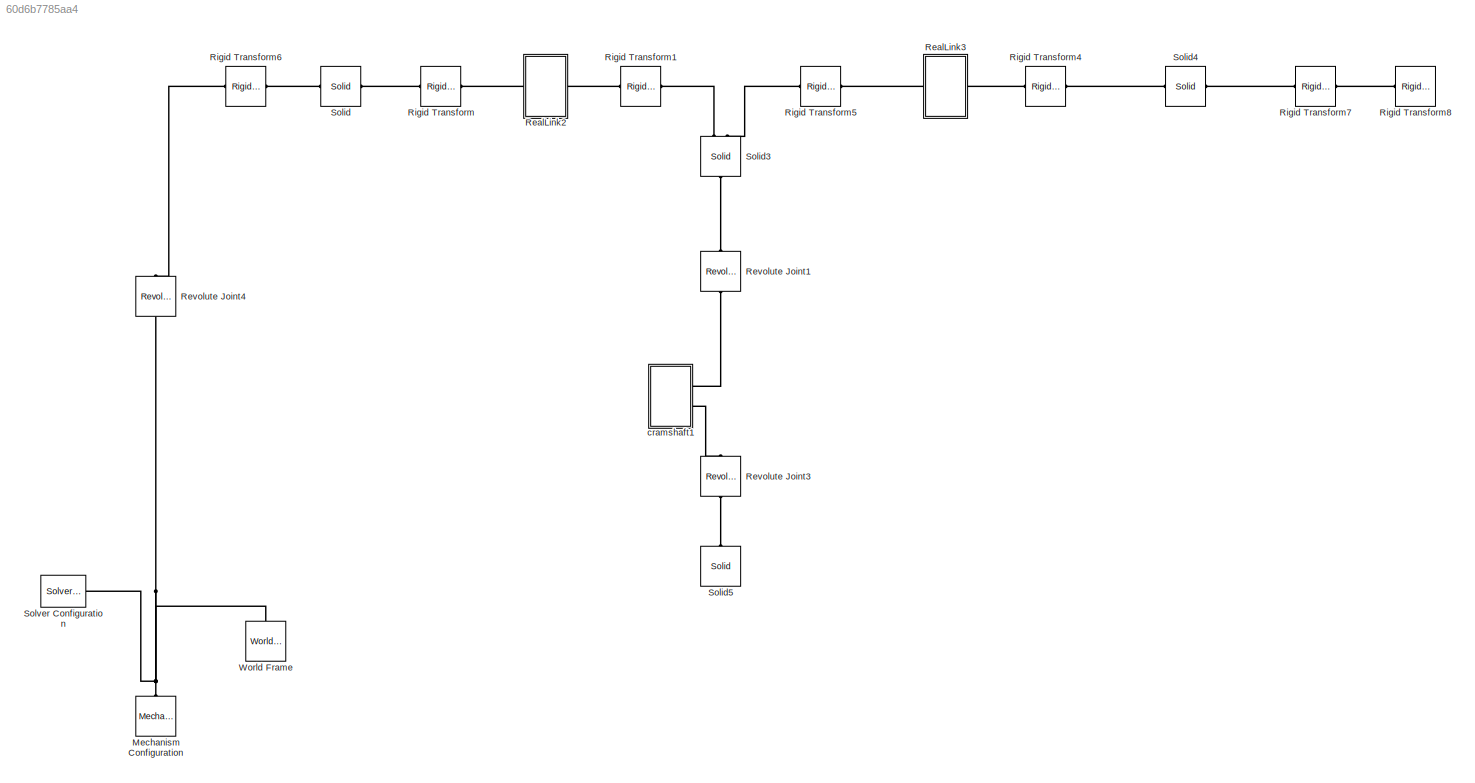
MODEL slx_60d6b7785aa4
KIND model
CONFIG AbsTol = auto
CONFIG EnableMultiTasking = off
CONFIG FixedStep = auto
CONFIG MaxStep = auto
CONFIG MinStep = auto
CONFIG RelTol = 1e-3
CONFIG SampleTimeConstraint = Unconstrained
CONFIG Solver = VariableStepAuto
CONFIG SolverName = VariableStepAuto
CONFIG StartTime = 0.0
CONFIG StopTime = 10.0
BLOCK [Reference] Mechanism Configuration  REF=sm_lib/Utilities/Mechanism
Configuration
  Ports = [0, 0, 0, 0, 0, 0, 1]
  SourceBlock = sm_lib/Utilities/Mechanism\nConfiguration
  SourceType = Mechanism\nConfiguration
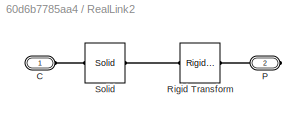
BLOCK [SubSystem] RealLink2
  Ports = [0, 0, 0, 0, 0, 1, 1]
  RequestExecContextInheritance = off
  Variant = off
BLOCK [PMIOPort] RealLink2/C
  Port = 1
  Side = Left
BLOCK [PMIOPort] RealLink2/P
  Port = 2
  Side = Right
BLOCK [Reference] RealLink2/Rigid Transform  REF=sm_lib/Frames and
Transforms/Rigid
Transform
  Ports = [0, 0, 0, 0, 0, 1, 1]
  SourceBlock = sm_lib/Frames and\nTransforms/Rigid\nTransform
  SourceType = Rigid\nTransform
BLOCK [Reference] RealLink2/Solid  REF=sm_lib/Body Elements/Solid
  Ports = [0, 0, 0, 0, 0, 1, 1]
  SourceBlock = sm_lib/Body Elements/Solid
  SourceType = Solid
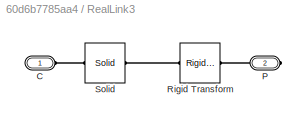
BLOCK [SubSystem] RealLink3
  Ports = [0, 0, 0, 0, 0, 1, 1]
  RequestExecContextInheritance = off
  Variant = off
BLOCK [PMIOPort] RealLink3/C
  Port = 1
  Side = Left
BLOCK [PMIOPort] RealLink3/P
  Port = 2
  Side = Right
BLOCK [Reference] RealLink3/Rigid Transform  REF=sm_lib/Frames and
Transforms/Rigid
Transform
  Ports = [0, 0, 0, 0, 0, 1, 1]
  SourceBlock = sm_lib/Frames and\nTransforms/Rigid\nTransform
  SourceType = Rigid\nTransform
BLOCK [Reference] RealLink3/Solid  REF=sm_lib/Body Elements/Solid
  Ports = [0, 0, 0, 0, 0, 1, 1]
  SourceBlock = sm_lib/Body Elements/Solid
  SourceType = Solid
BLOCK [Reference] Revolute Joint1  REF=sm_lib/Joints/Revolute Joint
  Ports = [0, 0, 0, 0, 0, 1, 1]
  SourceBlock = sm_lib/Joints/Revolute Joint
  SourceType = Revolute Joint
BLOCK [Reference] Revolute Joint3  REF=sm_lib/Joints/Revolute Joint
  Ports = [0, 0, 0, 0, 0, 1, 1]
  SourceBlock = sm_lib/Joints/Revolute Joint
  SourceType = Revolute Joint
BLOCK [Reference] Revolute Joint4  REF=sm_lib/Joints/Revolute Joint
  Ports = [0, 0, 0, 0, 0, 1, 1]
  SourceBlock = sm_lib/Joints/Revolute Joint
  SourceType = Revolute Joint
BLOCK [Reference] Rigid Transform  REF=sm_lib/Frames and
Transforms/Rigid
Transform
  Ports = [0, 0, 0, 0, 0, 1, 1]
  SourceBlock = sm_lib/Frames and\nTransforms/Rigid\nTransform
  SourceType = Rigid\nTransform
BLOCK [Reference] Rigid Transform1  REF=sm_lib/Frames and
Transforms/Rigid
Transform
  Ports = [0, 0, 0, 0, 0, 1, 1]
  SourceBlock = sm_lib/Frames and\nTransforms/Rigid\nTransform
  SourceType = Rigid\nTransform
BLOCK [Reference] Rigid Transform4  REF=sm_lib/Frames and
Transforms/Rigid
Transform
  Ports = [0, 0, 0, 0, 0, 1, 1]
  SourceBlock = sm_lib/Frames and\nTransforms/Rigid\nTransform
  SourceType = Rigid\nTransform
BLOCK [Reference] Rigid Transform5  REF=sm_lib/Frames and
Transforms/Rigid
Transform
  Ports = [0, 0, 0, 0, 0, 1, 1]
  SourceBlock = sm_lib/Frames and\nTransforms/Rigid\nTransform
  SourceType = Rigid\nTransform
BLOCK [Reference] Rigid Transform6  REF=sm_lib/Frames and
Transforms/Rigid
Transform
  Ports = [0, 0, 0, 0, 0, 1, 1]
  SourceBlock = sm_lib/Frames and\nTransforms/Rigid\nTransform
  SourceType = Rigid\nTransform
BLOCK [Reference] Rigid Transform7  REF=sm_lib/Frames and
Transforms/Rigid
Transform
  Ports = [0, 0, 0, 0, 0, 1, 1]
  SourceBlock = sm_lib/Frames and\nTransforms/Rigid\nTransform
  SourceType = Rigid\nTransform
BLOCK [Reference] Rigid Transform8  REF=sm_lib/Frames and
Transforms/Rigid
Transform
  Ports = [0, 0, 0, 0, 0, 1, 1]
  SourceBlock = sm_lib/Frames and\nTransforms/Rigid\nTransform
  SourceType = Rigid\nTransform
BLOCK [Reference] Solid  REF=sm_lib/Body Elements/Solid
  Ports = [0, 0, 0, 0, 0, 1, 1]
  SourceBlock = sm_lib/Body Elements/Solid
  SourceType = Solid
BLOCK [Reference] Solid3  REF=sm_lib/Body Elements/Solid
  Ports = [0, 0, 0, 0, 0, 2, 1]
  SourceBlock = sm_lib/Body Elements/Solid
  SourceType = Solid
BLOCK [Reference] Solid4  REF=sm_lib/Body Elements/Solid
  Ports = [0, 0, 0, 0, 0, 1, 1]
  SourceBlock = sm_lib/Body Elements/Solid
  SourceType = Solid
BLOCK [Reference] Solid5  REF=sm_lib/Body Elements/Solid
  Ports = [0, 0, 0, 0, 0, 1, 1]
  SourceBlock = sm_lib/Body Elements/Solid
  SourceType = Solid
BLOCK [Reference] Solver Configuration  REF=nesl_utility/Solver
Configuration
  Ports = [0, 0, 0, 0, 0, 0, 1]
  SourceBlock = nesl_utility/Solver\nConfiguration
  SourceType = Solver\nConfiguration
BLOCK [Reference] World Frame  REF=sm_lib/Frames and
Transforms/World Frame
  Ports = [0, 0, 0, 0, 0, 0, 1]
  SourceBlock = sm_lib/Frames and\nTransforms/World Frame
  SourceType = World Frame
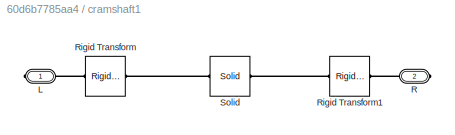
BLOCK [SubSystem] cramshaft1
  Ports = [0, 0, 0, 0, 0, 0, 2]
  RequestExecContextInheritance = off
  Variant = off
BLOCK [PMIOPort] cramshaft1/L
  Port = 1
  Side = Right
BLOCK [PMIOPort] cramshaft1/R
  Port = 2
  Side = Right
BLOCK [Reference] cramshaft1/Rigid Transform  REF=sm_lib/Frames and
Transforms/Rigid
Transform
  Ports = [0, 0, 0, 0, 0, 1, 1]
  SourceBlock = sm_lib/Frames and\nTransforms/Rigid\nTransform
  SourceType = Rigid\nTransform
BLOCK [Reference] cramshaft1/Rigid Transform1  REF=sm_lib/Frames and
Transforms/Rigid
Transform
  Ports = [0, 0, 0, 0, 0, 1, 1]
  SourceBlock = sm_lib/Frames and\nTransforms/Rigid\nTransform
  SourceType = Rigid\nTransform
BLOCK [Reference] cramshaft1/Solid  REF=sm_lib/Body Elements/Solid
  Ports = [0, 0, 0, 0, 0, 1, 1]
  SourceBlock = sm_lib/Body Elements/Solid
  SourceType = Solid
PNET net1: Mechanism Configuration:RConn1 -- Revolute Joint4:LConn1 -- Solver Configuration:RConn1 -- World Frame:RConn1
PLINE RealLink2/C:RConn1 -- RealLink2/Solid:LConn1
PLINE RealLink2/P:RConn1 -- RealLink2/Rigid Transform:RConn1
PLINE RealLink2/Rigid Transform:LConn1 -- RealLink2/Solid:RConn1
PLINE RealLink2:LConn1 -- Rigid Transform:RConn1
PLINE RealLink2:RConn1 -- Rigid Transform1:RConn1
PLINE RealLink3/C:RConn1 -- RealLink3/Solid:LConn1
PLINE RealLink3/P:RConn1 -- RealLink3/Rigid Transform:RConn1
PLINE RealLink3/Rigid Transform:LConn1 -- RealLink3/Solid:RConn1
PLINE RealLink3:LConn1 -- Rigid Transform4:RConn1
PLINE RealLink3:RConn1 -- Rigid Transform5:RConn1
PLINE Revolute Joint1:LConn1 -- Solid3:RConn1
PLINE Revolute Joint1:RConn1 -- cramshaft1:RConn1
PLINE Revolute Joint3:LConn1 -- Solid5:LConn1
PLINE Revolute Joint3:RConn1 -- cramshaft1:RConn2
PLINE Revolute Joint4:RConn1 -- Rigid Transform6:RConn1
PLINE Rigid Transform1:LConn1 -- Solid3:LConn1
PLINE Rigid Transform4:LConn1 -- Solid4:RConn1
PLINE Rigid Transform5:LConn1 -- Solid3:LConn2
PLINE Rigid Transform6:LConn1 -- Solid:LConn1
PLINE Rigid Transform7:LConn1 -- Solid4:LConn1
PLINE Rigid Transform7:RConn1 -- Rigid Transform8:LConn1
PLINE Rigid Transform:LConn1 -- Solid:RConn1
PLINE cramshaft1/L:RConn1 -- cramshaft1/Rigid Transform:RConn1
PLINE cramshaft1/R:RConn1 -- cramshaft1/Rigid Transform1:RConn1
PLINE cramshaft1/Rigid Transform1:LConn1 -- cramshaft1/Solid:RConn1
PLINE cramshaft1/Rigid Transform:LConn1 -- cramshaft1/Solid:LConn1
note: PNET lines group multi-terminal physical nets as a canonical sorted terminal list (undirected conserving connections); 2-terminal nets keep the pairwise PLINE form
